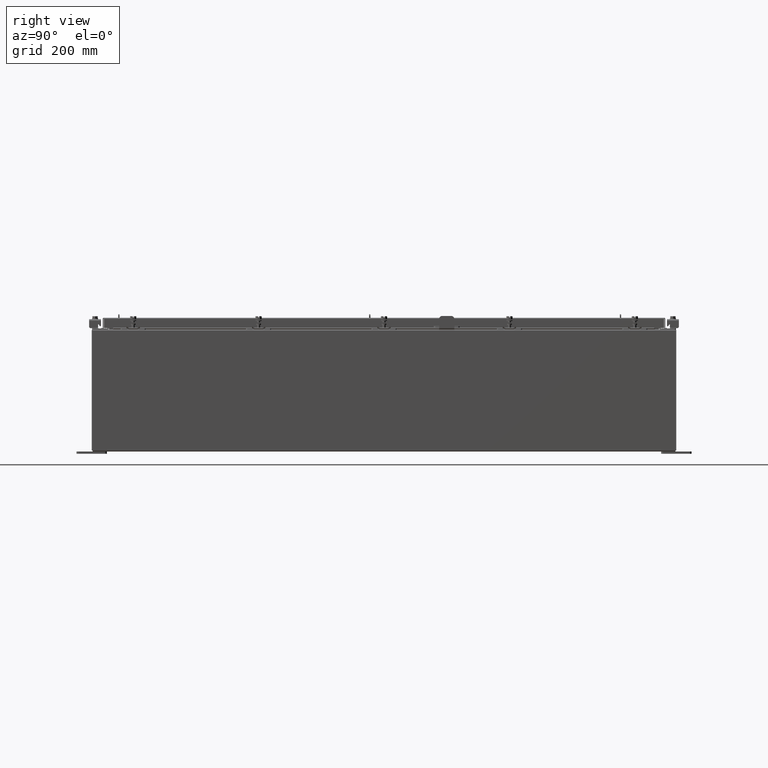
[diagram: clean part render]
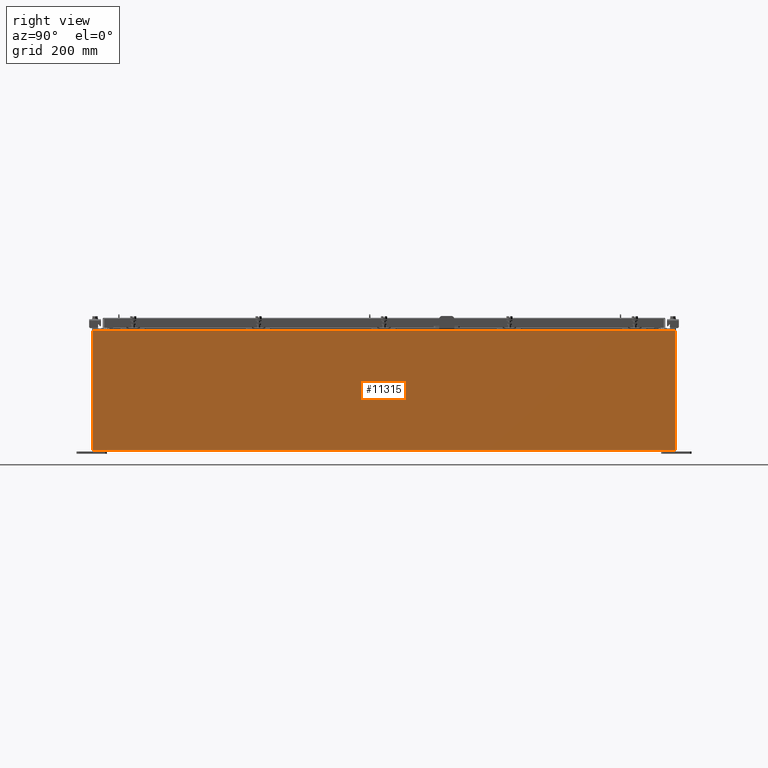
[diagram: same view with one face highlighted and labeled with its STEP entity id]
A machine part, right view. The second image highlights one B-rep face of the part: STEP entity #11315.
In plain terms, the highlighted planar face has unit normal (-1, 0, 0).
Its self-contained STEP definition (entity closure, byte-faithful):
#628 = LINE ( 'NONE', #3455, #4709 ) ;
#1313 = VERTEX_POINT ( 'NONE', #7526 ) ;
#1756 = CARTESIAN_POINT ( 'NONE',  ( 15.00000000000003400, 23.92529999999999600, 9.837599999999994800 ) ) ;
#2476 = CARTESIAN_POINT ( 'NONE',  ( 15.00000000000003400, 23.92529999999998600, 9.837599999999994800 ) ) ;
#2644 = DIRECTION ( 'NONE',  ( -1.000000000000000000, 0.0000000000000000000, 3.523082860860887800E-015 ) ) ;
#2885 = CARTESIAN_POINT ( 'NONE',  ( 14.99999999999999800, -23.92529999999998600, -5.310705656892488900E-014 ) ) ;
#3455 = CARTESIAN_POINT ( 'NONE',  ( 14.99999999999999800, -23.92529999999998600, 0.01299999999999984700 ) ) ;
#4070 = AXIS2_PLACEMENT_3D ( 'NONE', #18130, #2644, #14808 ) ;
#4312 = VECTOR ( 'NONE', #8151, 39.37007874015748100 ) ;
#4678 = ORIENTED_EDGE ( 'NONE', *, *, #8363, .T. ) ;
#4709 = VECTOR ( 'NONE', #5190, 39.37007874015748100 ) ;
#4851 = LINE ( 'NONE', #2885, #4312 ) ;
#5190 = DIRECTION ( 'NONE',  ( 1.609096119163526300E-031, -1.000000000000000000, 4.567295697298285000E-017 ) ) ;
#7311 = FACE_OUTER_BOUND ( 'NONE', #9982, .T. ) ;
#7526 = CARTESIAN_POINT ( 'NONE',  ( 14.99999999999999800, -23.92529999999998200, 0.01300000000000071400 ) ) ;
#8151 = DIRECTION ( 'NONE',  ( -3.523082860860888200E-015, 0.0000000000000000000, -1.000000000000000000 ) ) ;
#8329 = ORIENTED_EDGE ( 'NONE', *, *, #20434, .F. ) ;
#8363 = EDGE_CURVE ( 'NONE', #11816, #8882, #19099, .T. ) ;
#8768 = DIRECTION ( 'NONE',  ( -0.0000000000000000000, -1.000000000000000000, -0.0000000000000000000 ) ) ;
#8882 = VERTEX_POINT ( 'NONE', #18659 ) ;
#9407 = DIRECTION ( 'NONE',  ( 3.523082860860888200E-015, 0.0000000000000000000, 1.000000000000000000 ) ) ;
#9982 = EDGE_LOOP ( 'NONE', ( #4678, #17317, #8329, #10753 ) ) ;
#9999 = VERTEX_POINT ( 'NONE', #17991 ) ;
#10753 = ORIENTED_EDGE ( 'NONE', *, *, #15185, .T. ) ;
#11315 = ADVANCED_FACE ( 'NONE', ( #7311 ), #13054, .F. ) ;
#11816 = VERTEX_POINT ( 'NONE', #2476 ) ;
#11986 = VECTOR ( 'NONE', #9407, 39.37007874015748100 ) ;
#13054 = PLANE ( 'NONE',  #4070 ) ;
#14487 = VECTOR ( 'NONE', #8768, 39.37007874015748100 ) ;
#14808 = DIRECTION ( 'NONE',  ( 3.523082860860887800E-015, 0.0000000000000000000, 1.000000000000000000 ) ) ;
#15185 = EDGE_CURVE ( 'NONE', #9999, #11816, #16587, .T. ) ;
#16587 = LINE ( 'NONE', #21544, #11986 ) ;
#17317 = ORIENTED_EDGE ( 'NONE', *, *, #17642, .T. ) ;
#17642 = EDGE_CURVE ( 'NONE', #8882, #1313, #4851, .T. ) ;
#17991 = CARTESIAN_POINT ( 'NONE',  ( 14.99999999999999800, 23.92529999999998900, 0.01299999999999766100 ) ) ;
#18130 = CARTESIAN_POINT ( 'NONE',  ( 14.99999999999999800, 0.0000000000000000000, -5.310705656892488900E-014 ) ) ;
#18659 = CARTESIAN_POINT ( 'NONE',  ( 15.00000000000003400, -23.92529999999998600, 9.837600000000001900 ) ) ;
#19099 = LINE ( 'NONE', #1756, #14487 ) ;
#20434 = EDGE_CURVE ( 'NONE', #9999, #1313, #628, .T. ) ;
#21544 = CARTESIAN_POINT ( 'NONE',  ( 14.99999999999999800, 23.92529999999999600, -5.310705656892488900E-014 ) ) ;